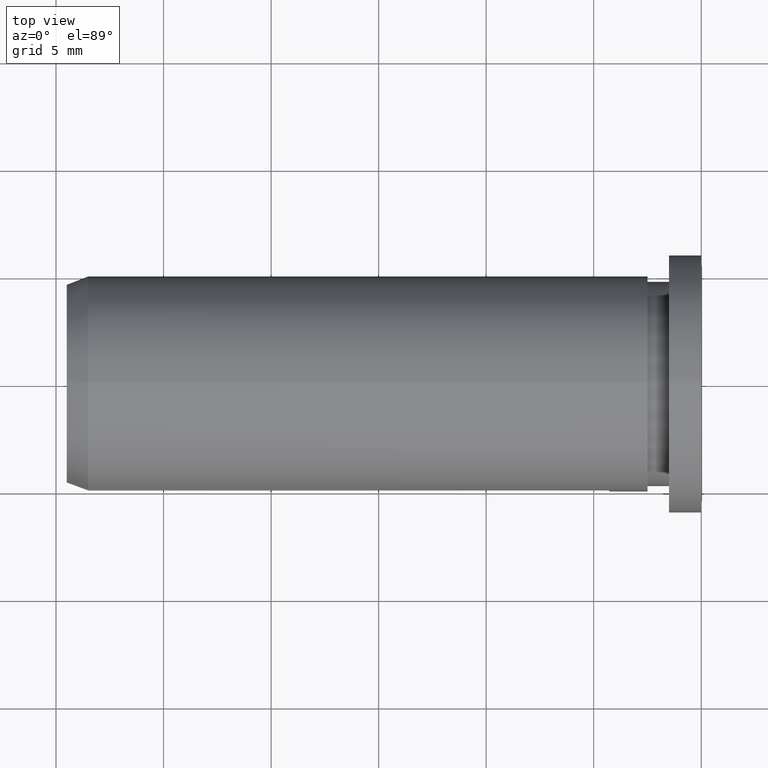
[diagram: clean part render]
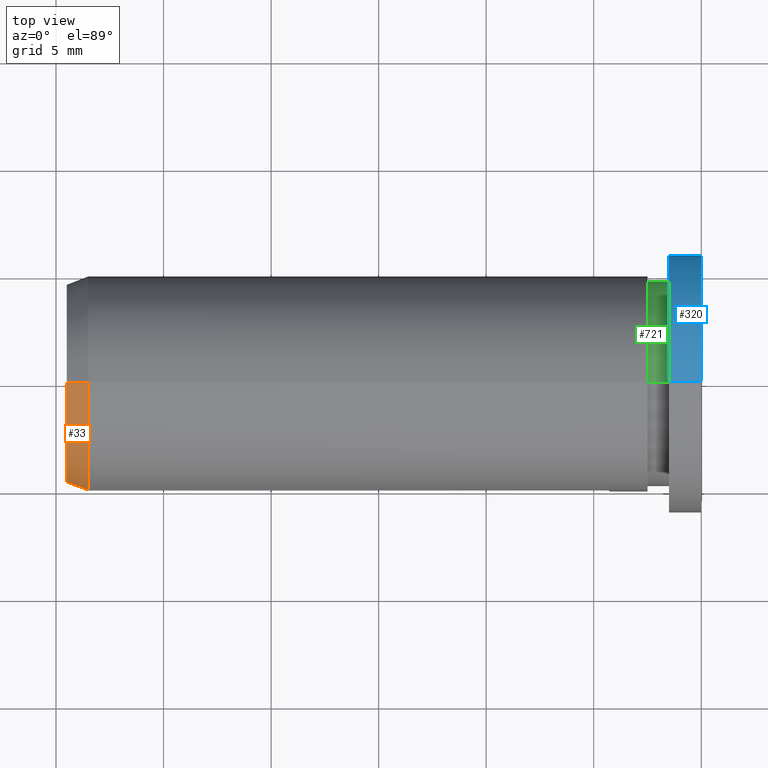
[diagram: same view with three faces highlighted in distinct colors, each labeled with its STEP entity id]
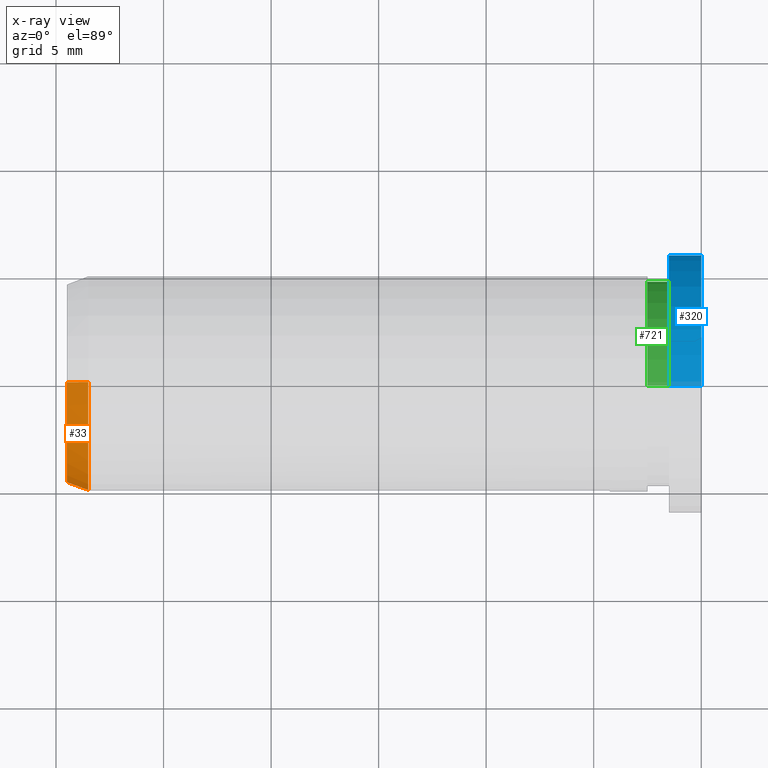
[diagram: x-ray of the same camera — body ghosted, the three highlighted faces saturated]
A machine part, top view with three faces highlighted in distinct colors.
The next image is the same camera in x-ray (body ghosted, the three faces saturated) — at least one of them is partly hidden behind the body in this view.
Their STEP definitions:

[orange] entity #33 — the highlighted conical surface has half-angle 20 deg.
#14 = CARTESIAN_POINT ( 'NONE',  ( -28.50000000000000000, 0.0000000000000000000, 0.0000000000000000000 ) ) ;
#27 = CARTESIAN_POINT ( 'NONE',  ( -28.50000000000000000, 6.123233995736762300E-016, 4.999999999999996400 ) ) ;
#33 = ADVANCED_FACE ( 'NONE', ( #761 ), #545, .T. ) ;
#60 = EDGE_CURVE ( 'NONE', #513, #523, #141, .T. ) ;
#85 = DIRECTION ( 'NONE',  ( 1.000000000000000000, 0.0000000000000000000, 0.0000000000000000000 ) ) ;
#115 = CARTESIAN_POINT ( 'NONE',  ( -28.50000000000000400, -4.943429983321294700, 0.7500000000000000000 ) ) ;
#141 = B_SPLINE_CURVE_WITH_KNOTS ( 'NONE', 3,
 ( #115, #703, #602, #735 ),
 .UNSPECIFIED., .F., .F.,
 ( 4, 4 ),
 ( 0.006348203301518862100, 0.007413927303149411700 ),
 .UNSPECIFIED. ) ;
#152 = EDGE_CURVE ( 'NONE', #523, #166, #748, .T. ) ;
#165 = EDGE_LOOP ( 'NONE', ( #728, #469, #641, #230 ) ) ;
#166 = VERTEX_POINT ( 'NONE', #269 ) ;
#174 = EDGE_CURVE ( 'NONE', #166, #510, #410, .T. ) ;
#202 = CARTESIAN_POINT ( 'NONE',  ( -29.50000000000000400, -4.574961419375001400, 0.7500000000000000000 ) ) ;
#230 = ORIENTED_EDGE ( 'NONE', *, *, #687, .T. ) ;
#236 = DIRECTION ( 'NONE',  ( 0.9396926207859082100, 4.188538737677001600E-017, 0.3420201433256695500 ) ) ;
#269 = CARTESIAN_POINT ( 'NONE',  ( -29.50000000000000400, 5.900366504547251900E-016, 4.636029765733793400 ) ) ;
#292 = DIRECTION ( 'NONE',  ( -1.000000000000000000, -0.0000000000000000000, -0.0000000000000000000 ) ) ;
#326 = CARTESIAN_POINT ( 'NONE',  ( -29.50000000000000400, 0.0000000000000000000, 0.0000000000000000000 ) ) ;
#360 = VECTOR ( 'NONE', #236, 999.9999999999998900 ) ;
#377 = DIRECTION ( 'NONE',  ( 0.0000000000000000000, 0.0000000000000000000, 1.000000000000000000 ) ) ;
#388 = DIRECTION ( 'NONE',  ( 0.0000000000000000000, 0.0000000000000000000, 1.000000000000000000 ) ) ;
#410 = LINE ( 'NONE', #27, #360 ) ;
#460 = AXIS2_PLACEMENT_3D ( 'NONE', #326, #541, #377 ) ;
#467 = CARTESIAN_POINT ( 'NONE',  ( -28.50000000000000000, 6.123233995736762300E-016, 4.999999999999996400 ) ) ;
#469 = ORIENTED_EDGE ( 'NONE', *, *, #152, .F. ) ;
#510 = VERTEX_POINT ( 'NONE', #467 ) ;
#513 = VERTEX_POINT ( 'NONE', #530 ) ;
#523 = VERTEX_POINT ( 'NONE', #202 ) ;
#530 = CARTESIAN_POINT ( 'NONE',  ( -28.50000000000000400, -4.943429983321294700, 0.7500000000000000000 ) ) ;
#533 = AXIS2_PLACEMENT_3D ( 'NONE', #684, #292, #388 ) ;
#541 = DIRECTION ( 'NONE',  ( -1.000000000000000000, -0.0000000000000000000, -0.0000000000000000000 ) ) ;
#545 = CONICAL_SURFACE ( 'NONE', #747, 4.999999999999996400, 0.3490658503988667300 ) ;
#602 = CARTESIAN_POINT ( 'NONE',  ( -29.16670580613720500, -4.697889866643478700, 0.7500000000000000000 ) ) ;
#641 = ORIENTED_EDGE ( 'NONE', *, *, #60, .F. ) ;
#657 = CIRCLE ( 'NONE', #533, 4.999999999999996400 ) ;
#684 = CARTESIAN_POINT ( 'NONE',  ( -28.50000000000000000, 0.0000000000000000000, 0.0000000000000000000 ) ) ;
#687 = EDGE_CURVE ( 'NONE', #513, #510, #657, .T. ) ;
#695 = DIRECTION ( 'NONE',  ( 0.0000000000000000000, 0.0000000000000000000, -1.000000000000000000 ) ) ;
#703 = CARTESIAN_POINT ( 'NONE',  ( -28.83336931173547800, -4.820704965571569500, 0.7500000000000000000 ) ) ;
#728 = ORIENTED_EDGE ( 'NONE', *, *, #174, .F. ) ;
#735 = CARTESIAN_POINT ( 'NONE',  ( -29.50000000000000400, -4.574961419375001400, 0.7500000000000000000 ) ) ;
#747 = AXIS2_PLACEMENT_3D ( 'NONE', #14, #85, #695 ) ;
#748 = CIRCLE ( 'NONE', #460, 4.636029765733793400 ) ;
#761 = FACE_OUTER_BOUND ( 'NONE', #165, .T. ) ;

[blue] entity #320 — the highlighted cylindrical surface (partial cylindrical patch) has radius 6 mm, axis along (-1, -0, -0).
#9 = DIRECTION ( 'NONE',  ( -1.000000000000000000, -0.0000000000000000000, -0.0000000000000000000 ) ) ;
#22 = LINE ( 'NONE', #422, #369 ) ;
#39 = VECTOR ( 'NONE', #382, 1000.000000000000000 ) ;
#41 = CARTESIAN_POINT ( 'NONE',  ( -33.37338553259883200, 0.0000000000000000000, 6.000000000000000000 ) ) ;
#46 = ORIENTED_EDGE ( 'NONE', *, *, #194, .F. ) ;
#168 = CARTESIAN_POINT ( 'NONE',  ( -1.500000000000001300, 0.0000000000000000000, 0.0000000000000000000 ) ) ;
#181 = VERTEX_POINT ( 'NONE', #627 ) ;
#194 = EDGE_CURVE ( 'NONE', #592, #437, #356, .T. ) ;
#203 = CARTESIAN_POINT ( 'NONE',  ( 0.0000000000000000000, 0.0000000000000000000, 6.000000000000000000 ) ) ;
#207 = CYLINDRICAL_SURFACE ( 'NONE', #453, 6.000000000000000000 ) ;
#282 = ORIENTED_EDGE ( 'NONE', *, *, #486, .T. ) ;
#309 = LINE ( 'NONE', #41, #39 ) ;
#320 = ADVANCED_FACE ( 'NONE', ( #568 ), #207, .T. ) ;
#346 = CIRCLE ( 'NONE', #710, 6.000000000000000000 ) ;
#351 = CARTESIAN_POINT ( 'NONE',  ( 0.0000000000000000000, 0.0000000000000000000, 0.0000000000000000000 ) ) ;
#352 = EDGE_LOOP ( 'NONE', ( #485, #282, #46, #402 ) ) ;
#356 = CIRCLE ( 'NONE', #731, 6.000000000000000000 ) ;
#369 = VECTOR ( 'NONE', #9, 1000.000000000000000 ) ;
#382 = DIRECTION ( 'NONE',  ( -1.000000000000000000, -0.0000000000000000000, -0.0000000000000000000 ) ) ;
#397 = CARTESIAN_POINT ( 'NONE',  ( -1.500000000000001300, 7.347880794884119700E-016, -6.000000000000000000 ) ) ;
#402 = ORIENTED_EDGE ( 'NONE', *, *, #648, .F. ) ;
#404 = DIRECTION ( 'NONE',  ( 0.0000000000000000000, 0.0000000000000000000, 1.000000000000000000 ) ) ;
#422 = CARTESIAN_POINT ( 'NONE',  ( -33.37338553259883200, 7.347880794884119700E-016, -6.000000000000000000 ) ) ;
#425 = EDGE_CURVE ( 'NONE', #463, #181, #346, .T. ) ;
#437 = VERTEX_POINT ( 'NONE', #397 ) ;
#442 = DIRECTION ( 'NONE',  ( 0.0000000000000000000, 0.0000000000000000000, 1.000000000000000000 ) ) ;
#453 = AXIS2_PLACEMENT_3D ( 'NONE', #712, #562, #404 ) ;
#463 = VERTEX_POINT ( 'NONE', #203 ) ;
#473 = DIRECTION ( 'NONE',  ( 0.0000000000000000000, 0.0000000000000000000, 1.000000000000000000 ) ) ;
#485 = ORIENTED_EDGE ( 'NONE', *, *, #425, .T. ) ;
#486 = EDGE_CURVE ( 'NONE', #181, #437, #22, .T. ) ;
#503 = CARTESIAN_POINT ( 'NONE',  ( -1.500000000000001300, 0.0000000000000000000, 6.000000000000000000 ) ) ;
#562 = DIRECTION ( 'NONE',  ( -1.000000000000000000, -0.0000000000000000000, -0.0000000000000000000 ) ) ;
#568 = FACE_OUTER_BOUND ( 'NONE', #352, .T. ) ;
#592 = VERTEX_POINT ( 'NONE', #503 ) ;
#627 = CARTESIAN_POINT ( 'NONE',  ( 0.0000000000000000000, 7.347880794884119700E-016, -6.000000000000000000 ) ) ;
#642 = DIRECTION ( 'NONE',  ( -1.000000000000000000, -0.0000000000000000000, -0.0000000000000000000 ) ) ;
#648 = EDGE_CURVE ( 'NONE', #463, #592, #309, .T. ) ;
#659 = DIRECTION ( 'NONE',  ( -1.000000000000000000, -0.0000000000000000000, -0.0000000000000000000 ) ) ;
#710 = AXIS2_PLACEMENT_3D ( 'NONE', #351, #642, #473 ) ;
#712 = CARTESIAN_POINT ( 'NONE',  ( -33.37338553259883200, 0.0000000000000000000, 0.0000000000000000000 ) ) ;
#731 = AXIS2_PLACEMENT_3D ( 'NONE', #168, #659, #442 ) ;

[green] entity #721 — the highlighted cylindrical surface (partial cylindrical patch) has radius 4.75 mm, axis along (-1, -0, -0).
#40 = VERTEX_POINT ( 'NONE', #711 ) ;
#107 = ORIENTED_EDGE ( 'NONE', *, *, #308, .T. ) ;
#120 = AXIS2_PLACEMENT_3D ( 'NONE', #578, #239, #171 ) ;
#149 = EDGE_CURVE ( 'NONE', #211, #252, #651, .T. ) ;
#155 = EDGE_CURVE ( 'NONE', #607, #40, #375, .T. ) ;
#161 = ORIENTED_EDGE ( 'NONE', *, *, #149, .F. ) ;
#171 = DIRECTION ( 'NONE',  ( 0.0000000000000000000, 0.0000000000000000000, 1.000000000000000000 ) ) ;
#188 = CARTESIAN_POINT ( 'NONE',  ( -2.499999999999998700, 5.817072295949927400E-016, -4.750000000000000000 ) ) ;
#211 = VERTEX_POINT ( 'NONE', #361 ) ;
#239 = DIRECTION ( 'NONE',  ( -1.000000000000000000, -0.0000000000000000000, -0.0000000000000000000 ) ) ;
#252 = VERTEX_POINT ( 'NONE', #188 ) ;
#279 = LINE ( 'NONE', #328, #446 ) ;
#283 = DIRECTION ( 'NONE',  ( 0.0000000000000000000, 0.0000000000000000000, 1.000000000000000000 ) ) ;
#308 = EDGE_CURVE ( 'NONE', #40, #252, #279, .T. ) ;
#325 = CYLINDRICAL_SURFACE ( 'NONE', #120, 4.750000000000000000 ) ;
#328 = CARTESIAN_POINT ( 'NONE',  ( -33.37338553259883200, 5.817072295949927400E-016, -4.750000000000000000 ) ) ;
#361 = CARTESIAN_POINT ( 'NONE',  ( -2.499999999999998700, 0.0000000000000000000, 4.750000000000000000 ) ) ;
#365 = CARTESIAN_POINT ( 'NONE',  ( -1.500000000000001300, 0.0000000000000000000, 4.750000000000000000 ) ) ;
#375 = CIRCLE ( 'NONE', #574, 4.750000000000000000 ) ;
#401 = CARTESIAN_POINT ( 'NONE',  ( -1.500000000000001300, 0.0000000000000000000, 0.0000000000000000000 ) ) ;
#411 = ORIENTED_EDGE ( 'NONE', *, *, #582, .F. ) ;
#438 = DIRECTION ( 'NONE',  ( -1.000000000000000000, -0.0000000000000000000, -0.0000000000000000000 ) ) ;
#443 = DIRECTION ( 'NONE',  ( -1.000000000000000000, -0.0000000000000000000, -0.0000000000000000000 ) ) ;
#446 = VECTOR ( 'NONE', #438, 1000.000000000000000 ) ;
#542 = DIRECTION ( 'NONE',  ( 0.0000000000000000000, 0.0000000000000000000, 1.000000000000000000 ) ) ;
#555 = ORIENTED_EDGE ( 'NONE', *, *, #155, .T. ) ;
#564 = AXIS2_PLACEMENT_3D ( 'NONE', #667, #689, #283 ) ;
#570 = EDGE_LOOP ( 'NONE', ( #555, #107, #161, #411 ) ) ;
#574 = AXIS2_PLACEMENT_3D ( 'NONE', #401, #443, #542 ) ;
#578 = CARTESIAN_POINT ( 'NONE',  ( -33.37338553259883200, 0.0000000000000000000, 0.0000000000000000000 ) ) ;
#582 = EDGE_CURVE ( 'NONE', #607, #211, #693, .T. ) ;
#601 = FACE_OUTER_BOUND ( 'NONE', #570, .T. ) ;
#607 = VERTEX_POINT ( 'NONE', #365 ) ;
#621 = DIRECTION ( 'NONE',  ( -1.000000000000000000, -0.0000000000000000000, -0.0000000000000000000 ) ) ;
#625 = VECTOR ( 'NONE', #621, 1000.000000000000000 ) ;
#651 = CIRCLE ( 'NONE', #564, 4.750000000000000000 ) ;
#667 = CARTESIAN_POINT ( 'NONE',  ( -2.499999999999998700, 0.0000000000000000000, 0.0000000000000000000 ) ) ;
#689 = DIRECTION ( 'NONE',  ( -1.000000000000000000, -0.0000000000000000000, -0.0000000000000000000 ) ) ;
#693 = LINE ( 'NONE', #727, #625 ) ;
#711 = CARTESIAN_POINT ( 'NONE',  ( -1.500000000000001300, 5.817072295949927400E-016, -4.750000000000000000 ) ) ;
#721 = ADVANCED_FACE ( 'NONE', ( #601 ), #325, .T. ) ;
#727 = CARTESIAN_POINT ( 'NONE',  ( -33.37338553259883200, 0.0000000000000000000, 4.750000000000000000 ) ) ;